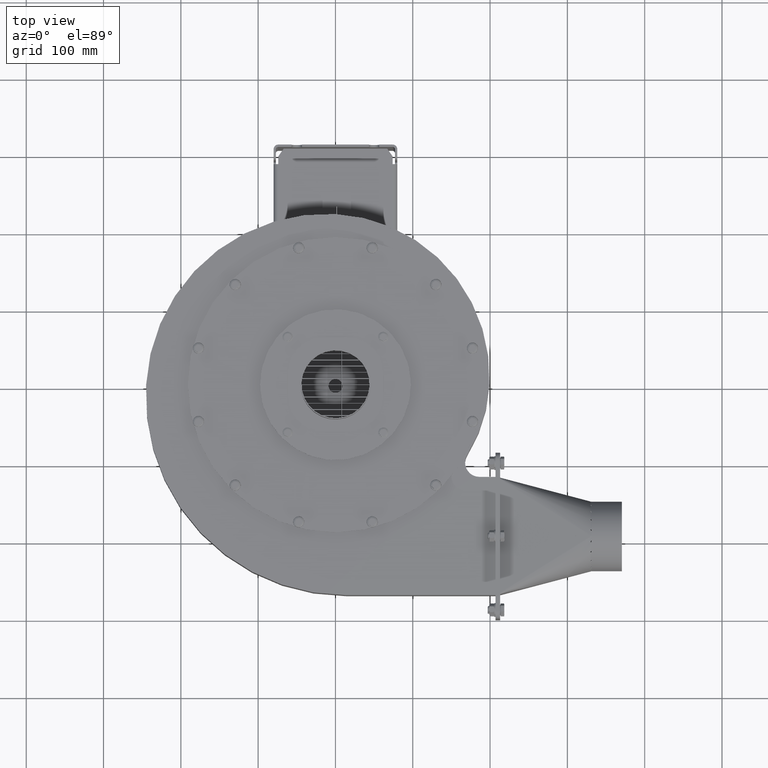
[diagram: clean part render]
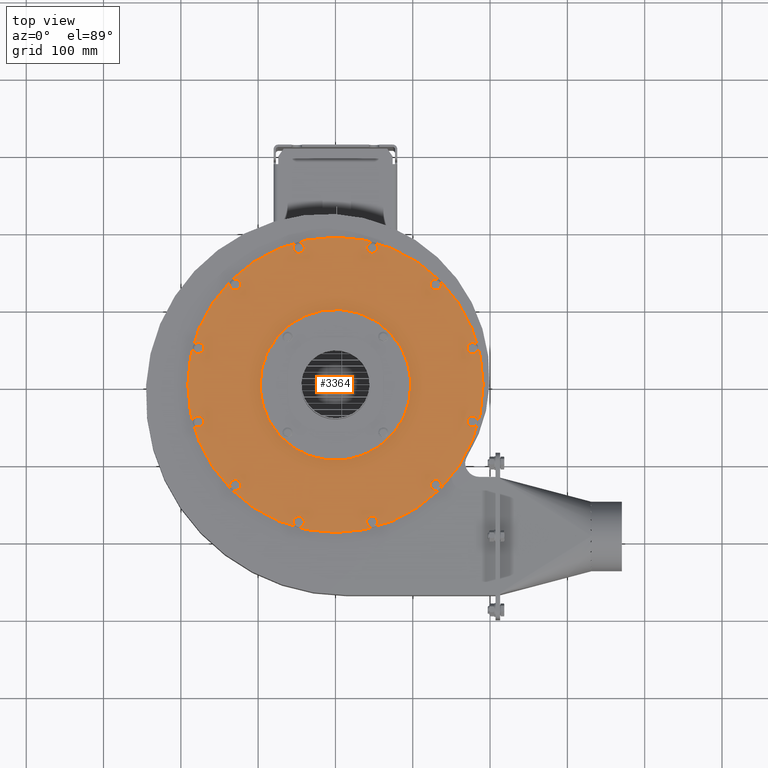
[diagram: same view with one face highlighted and labeled with its STEP entity id]
A machine part, top view. The second image highlights one B-rep face of the part: STEP entity #3364.
In plain terms, the highlighted planar face has unit normal (-0, 0, -1).
Its self-contained STEP definition (entity closure, byte-faithful):
#3364 = ADVANCED_FACE( 'NONE', ( #8022, #8023, #8024, #8025, #8026, #8027, #8028, #8029, #8030, #8031, #8032, #8033, #8034, #8035 ), #8036, .F. );
#8022 = FACE_OUTER_BOUND( '', #14470, .T. );
#8023 = FACE_BOUND( '', #14471, .T. );
#8024 = FACE_BOUND( '', #14472, .T. );
#8025 = FACE_BOUND( '', #14473, .T. );
#8026 = FACE_BOUND( '', #14474, .T. );
#8027 = FACE_BOUND( '', #14475, .T. );
#8028 = FACE_BOUND( '', #14476, .T. );
#8029 = FACE_BOUND( '', #14477, .T. );
#8030 = FACE_BOUND( '', #14478, .T. );
#8031 = FACE_BOUND( '', #14479, .T. );
#8032 = FACE_BOUND( '', #14480, .T. );
#8033 = FACE_BOUND( '', #14481, .T. );
#8034 = FACE_BOUND( '', #14482, .T. );
#8035 = FACE_BOUND( '', #14483, .T. );
#8036 = PLANE( '', #14484 );
#14470 = EDGE_LOOP( '', ( #24441 ) );
#14471 = EDGE_LOOP( '', ( #24442 ) );
#14472 = EDGE_LOOP( '', ( #24443 ) );
#14473 = EDGE_LOOP( '', ( #24444 ) );
#14474 = EDGE_LOOP( '', ( #24445 ) );
#14475 = EDGE_LOOP( '', ( #24446 ) );
#14476 = EDGE_LOOP( '', ( #24447 ) );
#14477 = EDGE_LOOP( '', ( #24448 ) );
#14478 = EDGE_LOOP( '', ( #24449 ) );
#14479 = EDGE_LOOP( '', ( #24450 ) );
#14480 = EDGE_LOOP( '', ( #24451 ) );
#14481 = EDGE_LOOP( '', ( #24452 ) );
#14482 = EDGE_LOOP( '', ( #24453 ) );
#14483 = EDGE_LOOP( '', ( #24454 ) );
#14484 = AXIS2_PLACEMENT_3D( '', #24455, #24456, #24457 );
#24441 = ORIENTED_EDGE( '', *, *, #37774, .F. );
#24442 = ORIENTED_EDGE( '', *, *, #37775, .F. );
#24443 = ORIENTED_EDGE( '', *, *, #36036, .F. );
#24444 = ORIENTED_EDGE( '', *, *, #37776, .F. );
#24445 = ORIENTED_EDGE( '', *, *, #37777, .F. );
#24446 = ORIENTED_EDGE( '', *, *, #37778, .F. );
#24447 = ORIENTED_EDGE( '', *, *, #37779, .F. );
#24448 = ORIENTED_EDGE( '', *, *, #37780, .F. );
#24449 = ORIENTED_EDGE( '', *, *, #36206, .F. );
#24450 = ORIENTED_EDGE( '', *, *, #37605, .F. );
#24451 = ORIENTED_EDGE( '', *, *, #37680, .F. );
#24452 = ORIENTED_EDGE( '', *, *, #37781, .F. );
#24453 = ORIENTED_EDGE( '', *, *, #35313, .F. );
#24454 = ORIENTED_EDGE( '', *, *, #37782, .F. );
#24455 = CARTESIAN_POINT( '', ( 1.27957907922851E-014, -4.73033010061827E-026, 1.99999999999993 ) );
#24456 = DIRECTION( '', ( -1.26942718391007E-016, 6.61686469463040E-029, -1.00000000000000 ) );
#24457 = DIRECTION( '', ( -1.00000000000000, 0.000000000000000, 1.26942718391007E-016 ) );
#35313 = EDGE_CURVE( 'NONE', #41730, #41730, #41731, .T. );
#36036 = EDGE_CURVE( 'NONE', #42964, #42964, #42965, .T. );
#36206 = EDGE_CURVE( 'NONE', #43250, #43250, #43251, .T. );
#37605 = EDGE_CURVE( 'NONE', #45598, #45598, #45599, .T. );
#37680 = EDGE_CURVE( 'NONE', #45708, #45708, #45709, .T. );
#37774 = EDGE_CURVE( 'NONE', #45846, #45846, #45847, .T. );
#37775 = EDGE_CURVE( 'NONE', #45848, #45848, #45849, .T. );
#37776 = EDGE_CURVE( 'NONE', #45850, #45850, #45851, .T. );
#37777 = EDGE_CURVE( 'NONE', #45852, #45852, #45853, .T. );
#37778 = EDGE_CURVE( 'NONE', #45854, #45854, #45855, .T. );
#37779 = EDGE_CURVE( 'NONE', #45856, #45856, #45857, .T. );
#37780 = EDGE_CURVE( 'NONE', #45858, #45858, #45859, .T. );
#37781 = EDGE_CURVE( 'NONE', #45860, #45860, #45861, .T. );
#37782 = EDGE_CURVE( 'NONE', #45862, #45862, #45863, .T. );
#41730 = VERTEX_POINT( '', #51045 );
#41731 = CIRCLE( '', #51046, 6.00000000000000 );
#42964 = VERTEX_POINT( '', #53284 );
#42965 = CIRCLE( '', #53285, 5.99999999999989 );
#43250 = VERTEX_POINT( '', #53708 );
#43251 = CIRCLE( '', #53709, 6.00000000000000 );
#45598 = VERTEX_POINT( '', #57385 );
#45599 = CIRCLE( '', #57386, 6.00000000000000 );
#45708 = VERTEX_POINT( '', #57551 );
#45709 = CIRCLE( '', #57552, 5.99999999999989 );
#45846 = VERTEX_POINT( '', #57778 );
#45847 = CIRCLE( '', #57779, 191.000000000000 );
#45848 = VERTEX_POINT( '', #57780 );
#45849 = CIRCLE( '', #57781, 6.00000000000000 );
#45850 = VERTEX_POINT( '', #57782 );
#45851 = CIRCLE( '', #57783, 6.00000000000000 );
#45852 = VERTEX_POINT( '', #57784 );
#45853 = CIRCLE( '', #57785, 6.00000000000000 );
#45854 = VERTEX_POINT( '', #57786 );
#45855 = CIRCLE( '', #57787, 5.99999999999989 );
#45856 = VERTEX_POINT( '', #57788 );
#45857 = CIRCLE( '', #57789, 5.99999999999992 );
#45858 = VERTEX_POINT( '', #57790 );
#45859 = CIRCLE( '', #57791, 97.5000000000000 );
#45860 = VERTEX_POINT( '', #57792 );
#45861 = CIRCLE( '', #57793, 6.00000000000000 );
#45862 = VERTEX_POINT( '', #57794 );
#45863 = CIRCLE( '', #57795, 5.99999999999989 );
#51045 = CARTESIAN_POINT( '', ( 47.4932947763114, 183.247389124041, 1.99999999999990 ) );
#51046 = AXIS2_PLACEMENT_3D( '', #65141, #65142, #65143 );
#53284 = CARTESIAN_POINT( '', ( -47.4932947763120, 183.247389124041, 1.99999999999991 ) );
#53285 = AXIS2_PLACEMENT_3D( '', #65979, #65980, #65981 );
#53708 = CARTESIAN_POINT( '', ( 123.754094347729, -129.754094347729, 1.99999999999994 ) );
#53709 = AXIS2_PLACEMENT_3D( '', #66178, #66179, #66180 );
#57385 = CARTESIAN_POINT( '', ( -47.4932947763113, -171.247389124041, 1.99999999999997 ) );
#57386 = AXIS2_PLACEMENT_3D( '', #68318, #68319, #68320 );
#57551 = CARTESIAN_POINT( '', ( -183.247389124041, -47.4932947763120, 1.99999999999993 ) );
#57552 = AXIS2_PLACEMENT_3D( '', #68395, #68396, #68397 );
#57778 = CARTESIAN_POINT( '', ( -191.000000000000, -4.73033010061827E-026, 1.99999999999995 ) );
#57779 = AXIS2_PLACEMENT_3D( '', #68490, #68491, #68492 );
#57780 = CARTESIAN_POINT( '', ( 123.754094347729, 129.754094347729, 1.99999999999994 ) );
#57781 = AXIS2_PLACEMENT_3D( '', #68493, #68494, #68495 );
#57782 = CARTESIAN_POINT( '', ( -183.247389124041, 47.4932947763114, 1.99999999999993 ) );
#57783 = AXIS2_PLACEMENT_3D( '', #68496, #68497, #68498 );
#57784 = CARTESIAN_POINT( '', ( -129.754094347729, -123.754094347729, 1.99999999999997 ) );
#57785 = AXIS2_PLACEMENT_3D( '', #68499, #68500, #68501 );
#57786 = CARTESIAN_POINT( '', ( 47.4932947763120, -171.247389124041, 1.99999999999996 ) );
#57787 = AXIS2_PLACEMENT_3D( '', #68502, #68503, #68504 );
#57788 = CARTESIAN_POINT( '', ( 171.247389124041, -47.4932947763113, 1.99999999999994 ) );
#57789 = AXIS2_PLACEMENT_3D( '', #68505, #68506, #68507 );
#57790 = CARTESIAN_POINT( '', ( 97.4999999999980, 1.98786142523051E-012, 1.99999999999992 ) );
#57791 = AXIS2_PLACEMENT_3D( '', #68508, #68509, #68510 );
#57792 = CARTESIAN_POINT( '', ( -129.754094347729, 135.754094347729, 1.99999999999993 ) );
#57793 = AXIS2_PLACEMENT_3D( '', #68511, #68512, #68513 );
#57794 = CARTESIAN_POINT( '', ( 171.247389124041, 47.4932947763120, 1.99999999999994 ) );
#57795 = AXIS2_PLACEMENT_3D( '', #68514, #68515, #68516 );
#65141 = CARTESIAN_POINT( '', ( 47.4932947763114, 177.247389124041, 1.99999999999993 ) );
#65142 = DIRECTION( '', ( 1.42895022330634E-015, 4.98732999343331E-015, 1.00000000000000 ) );
#65143 = DIRECTION( '', ( 6.93889390390722E-015, 1.00000000000000, -4.98732999343332E-015 ) );
#65979 = CARTESIAN_POINT( '', ( -47.4932947763120, 177.247389124041, 1.99999999999994 ) );
#65980 = DIRECTION( '', ( -1.23152189540507E-015, 4.98732999343341E-015, 1.00000000000000 ) );
#65981 = DIRECTION( '', ( 2.31296463463579E-015, 1.00000000000000, -4.98732999343341E-015 ) );
#66178 = CARTESIAN_POINT( '', ( 129.754094347729, -129.754094347729, 1.99999999999992 ) );
#66179 = DIRECTION( '', ( 3.75856753128308E-015, -3.63084925850462E-015, 1.00000000000000 ) );
#66180 = DIRECTION( '', ( -1.00000000000000, 0.000000000000000, 3.75856753128308E-015 ) );
#68318 = CARTESIAN_POINT( '', ( -47.4932947763113, -177.247389124041, 1.99999999999994 ) );
#68319 = DIRECTION( '', ( -1.23021852471359E-015, -4.98732999343332E-015, 1.00000000000000 ) );
#68320 = DIRECTION( '', ( 1.15648231731787E-015, 1.00000000000000, 4.98732999343332E-015 ) );
#68395 = CARTESIAN_POINT( '', ( -177.247389124041, -47.4932947763120, 1.99999999999996 ) );
#68396 = DIRECTION( '', ( -4.84276970376868E-015, -1.32960006238588E-015, 1.00000000000000 ) );
#68397 = DIRECTION( '', ( -1.00000000000000, 2.31296463463579E-015, -4.84276970376868E-015 ) );
#68490 = CARTESIAN_POINT( '', ( 1.27957907922851E-014, -4.73033010061827E-026, 1.99999999999993 ) );
#68491 = DIRECTION( '', ( -1.27152506092541E-016, -1.40053886711417E-031, -1.00000000000000 ) );
#68492 = DIRECTION( '', ( -1.00000000000000, 0.000000000000000, 1.27152506092541E-016 ) );
#68493 = CARTESIAN_POINT( '', ( 129.754094347729, 129.754094347729, 1.99999999999992 ) );
#68494 = DIRECTION( '', ( 3.75856753128308E-015, 3.63066266021164E-015, 1.00000000000000 ) );
#68495 = DIRECTION( '', ( -1.00000000000000, 0.000000000000000, 3.75856753128308E-015 ) );
#68496 = CARTESIAN_POINT( '', ( -177.247389124041, 47.4932947763114, 1.99999999999996 ) );
#68497 = DIRECTION( '', ( -4.84276970376857E-015, 1.32735028771051E-015, 1.00000000000000 ) );
#68498 = DIRECTION( '', ( -1.00000000000000, 6.93889390390722E-015, -4.84276970376858E-015 ) );
#68499 = CARTESIAN_POINT( '', ( -129.754094347729, -129.754094347729, 1.99999999999995 ) );
#68500 = DIRECTION( '', ( -3.50314921486737E-015, -3.61400724161835E-015, 1.00000000000000 ) );
#68501 = DIRECTION( '', ( 0.000000000000000, 1.00000000000000, 3.61400724161835E-015 ) );
#68502 = CARTESIAN_POINT( '', ( 47.4932947763120, -177.247389124041, 1.99999999999993 ) );
#68503 = DIRECTION( '', ( 1.42931278112177E-015, -4.98732999343341E-015, 1.00000000000000 ) );
#68504 = DIRECTION( '', ( 0.000000000000000, 1.00000000000000, 4.98732999343341E-015 ) );
#68505 = CARTESIAN_POINT( '', ( 177.247389124041, -47.4932947763113, 1.99999999999991 ) );
#68506 = DIRECTION( '', ( 5.05961013826575E-015, -1.33181846030942E-015, 1.00000000000000 ) );
#68507 = DIRECTION( '', ( -1.00000000000000, 3.46944695195366E-015, 5.05961013826575E-015 ) );
#68508 = CARTESIAN_POINT( '', ( -1.97130791156537E-012, 1.98786142523051E-012, 1.99999999999993 ) );
#68509 = DIRECTION( '', ( 1.06752213906265E-016, -6.37994682680736E-029, 1.00000000000000 ) );
#68510 = DIRECTION( '', ( 1.00000000000000, 0.000000000000000, -1.06752213906265E-016 ) );
#68511 = CARTESIAN_POINT( '', ( -129.754094347729, 129.754094347729, 1.99999999999995 ) );
#68512 = DIRECTION( '', ( -3.50448641307962E-015, 3.61400724161835E-015, 1.00000000000000 ) );
#68513 = DIRECTION( '', ( 0.000000000000000, 1.00000000000000, -3.61400724161835E-015 ) );
#68514 = CARTESIAN_POINT( '', ( 177.247389124041, 47.4932947763120, 1.99999999999991 ) );
#68515 = DIRECTION( '', ( 5.05961013826578E-015, 1.33123461414096E-015, 1.00000000000000 ) );
#68516 = DIRECTION( '', ( -1.00000000000000, 2.31296463463579E-015, 5.05961013826578E-015 ) );